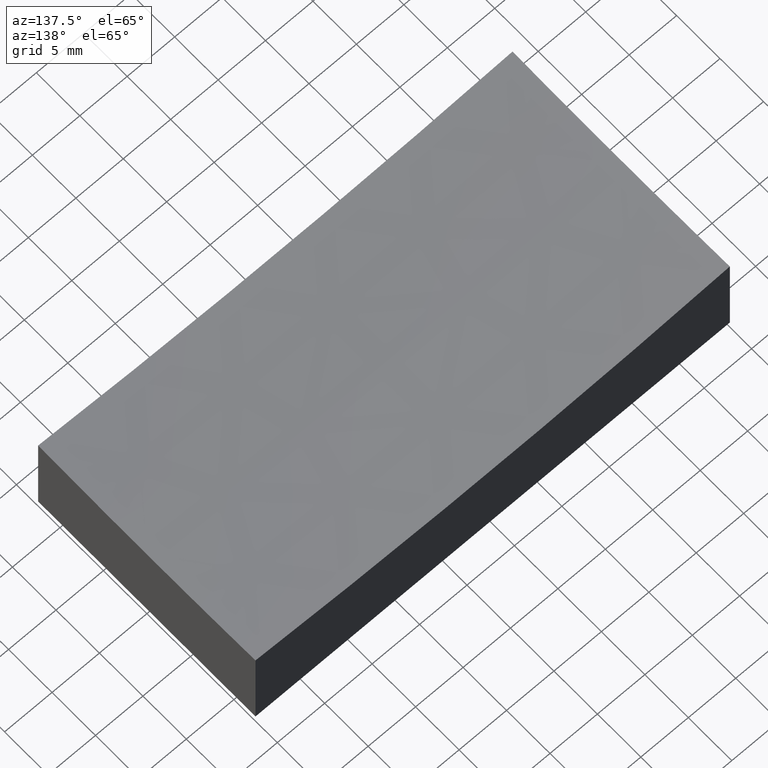
[diagram: clean part render]
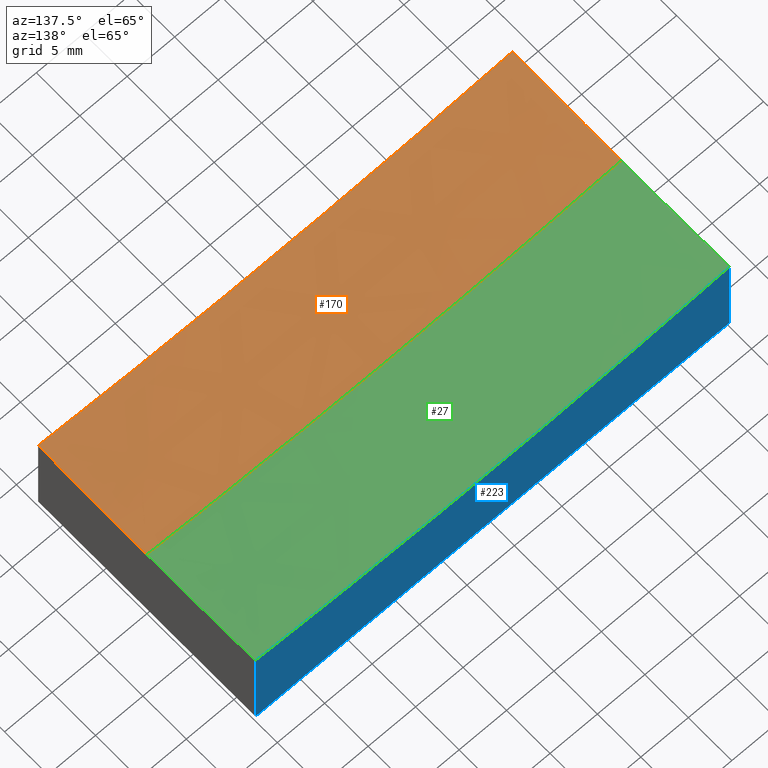
[diagram: same view with three faces highlighted in distinct colors, each labeled with its STEP entity id]
A machine part, auxiliary view with three faces highlighted in distinct colors.
Their STEP definitions:

[orange] entity #170 — the highlighted spherical surface has radius 300 mm.
#5 = CARTESIAN_POINT ( 'NONE',  ( 25.00000000000000000, -6.938893903907228378E-15, 309.0000000000000000 ) ) ;
#14 = FACE_OUTER_BOUND ( 'NONE', #175, .T. ) ;
#17 = DIRECTION ( 'NONE',  ( 8.881784197001250746E-15, 0.000000000000000000, 1.000000000000000000 ) ) ;
#20 = AXIS2_PLACEMENT_3D ( 'NONE', #58, #108, #55 ) ;
#26 = ORIENTED_EDGE ( 'NONE', *, *, #189, .F. ) ;
#36 = AXIS2_PLACEMENT_3D ( 'NONE', #110, #53, #148 ) ;
#44 = CIRCLE ( 'NONE', #181, 298.9565185775349505 ) ;
#47 = DIRECTION ( 'NONE',  ( -1.392622700503039140E-16, 1.000000000000000000, 0.000000000000000000 ) ) ;
#50 = VERTEX_POINT ( 'NONE', #240 ) ;
#52 = CARTESIAN_POINT ( 'NONE',  ( -25.00000000000000000, -3.061616997868383043E-15, 10.04348142246502817 ) ) ;
#53 = DIRECTION ( 'NONE',  ( 1.224646799147353207E-16, -1.000000000000000000, -1.592996844355151900E-35 ) ) ;
#55 = DIRECTION ( 'NONE',  ( 0.000000000000000000, 0.000000000000000000, 1.000000000000000000 ) ) ;
#58 = CARTESIAN_POINT ( 'NONE',  ( 0.000000000000000000, 0.000000000000000000, 309.0000000000000000 ) ) ;
#72 = EDGE_CURVE ( 'NONE', #139, #158, #44, .T. ) ;
#73 = CARTESIAN_POINT ( 'NONE',  ( 24.99999999999999645, -12.50000000000000000, 10.30492136628696720 ) ) ;
#74 = CARTESIAN_POINT ( 'NONE',  ( 25.00000000000000000, 0.000000000000000000, 10.04348142246502817 ) ) ;
#81 = EDGE_CURVE ( 'NONE', #97, #100, #172, .T. ) ;
#88 = CARTESIAN_POINT ( 'NONE',  ( 0.000000000000000000, 0.000000000000000000, 309.0000000000000000 ) ) ;
#97 = VERTEX_POINT ( 'NONE', #73 ) ;
#100 = VERTEX_POINT ( 'NONE', #74 ) ;
#108 = DIRECTION ( 'NONE',  ( 0.000000000000000000, 1.000000000000000000, -0.000000000000000000 ) ) ;
#109 = SPHERICAL_SURFACE ( 'NONE', #235, 300.0000000000000000 ) ;
#110 = CARTESIAN_POINT ( 'NONE',  ( 0.000000000000000000, 0.000000000000000000, 309.0000000000000000 ) ) ;
#111 = CIRCLE ( 'NONE', #20, 300.0000000000000000 ) ;
#116 = EDGE_CURVE ( 'NONE', #100, #50, #111, .T. ) ;
#120 = DIRECTION ( 'NONE',  ( 1.000000000000000000, -2.775557561562891351E-16, -0.000000000000000000 ) ) ;
#122 = ORIENTED_EDGE ( 'NONE', *, *, #72, .T. ) ;
#123 = AXIS2_PLACEMENT_3D ( 'NONE', #5, #120, #205 ) ;
#128 = DIRECTION ( 'NONE',  ( 0.000000000000000000, -1.000000000000000000, -0.000000000000000000 ) ) ;
#132 = DIRECTION ( 'NONE',  ( -0.000000000000000000, -1.000000000000000000, -0.000000000000000000 ) ) ;
#137 = ORIENTED_EDGE ( 'NONE', *, *, #81, .T. ) ;
#139 = VERTEX_POINT ( 'NONE', #52 ) ;
#140 = CIRCLE ( 'NONE', #36, 300.0000000000000000 ) ;
#144 = DIRECTION ( 'NONE',  ( -1.000000000000000000, -1.387778780781445676E-16, 0.000000000000000000 ) ) ;
#146 = AXIS2_PLACEMENT_3D ( 'NONE', #165, #132, #17 ) ;
#148 = DIRECTION ( 'NONE',  ( 1.000000000000000000, 1.224646799147353207E-16, 0.000000000000000000 ) ) ;
#158 = VERTEX_POINT ( 'NONE', #179 ) ;
#163 = DIRECTION ( 'NONE',  ( 1.000000000000000000, 0.000000000000000000, 0.000000000000000000 ) ) ;
#165 = CARTESIAN_POINT ( 'NONE',  ( 0.000000000000000000, -12.49999999999999645, 309.0000000000000000 ) ) ;
#170 = ADVANCED_FACE ( 'NONE', ( #14 ), #109, .F. ) ;
#172 = CIRCLE ( 'NONE', #123, 298.9565185775349505 ) ;
#175 = EDGE_LOOP ( 'NONE', ( #26, #122, #194, #137, #185 ) ) ;
#179 = CARTESIAN_POINT ( 'NONE',  ( -24.99999999999998934, -12.49999999999999645, 10.30492136628702227 ) ) ;
#181 = AXIS2_PLACEMENT_3D ( 'NONE', #200, #144, #47 ) ;
#185 = ORIENTED_EDGE ( 'NONE', *, *, #116, .T. ) ;
#189 = EDGE_CURVE ( 'NONE', #139, #50, #140, .T. ) ;
#194 = ORIENTED_EDGE ( 'NONE', *, *, #203, .T. ) ;
#200 = CARTESIAN_POINT ( 'NONE',  ( -25.00000000000000000, -3.469446951953614189E-15, 309.0000000000000000 ) ) ;
#203 = EDGE_CURVE ( 'NONE', #158, #97, #213, .T. ) ;
#205 = DIRECTION ( 'NONE',  ( -2.785245401006078279E-16, -1.000000000000000000, 0.000000000000000000 ) ) ;
#213 = CIRCLE ( 'NONE', #146, 299.7394702070449739 ) ;
#235 = AXIS2_PLACEMENT_3D ( 'NONE', #88, #128, #163 ) ;
#240 = CARTESIAN_POINT ( 'NONE',  ( 1.833067856807922641E-14, 0.000000000000000000, 9.000000000000007105 ) ) ;

[blue] entity #223 — the highlighted planar face has unit normal (0, -1, 0).
#2 = VECTOR ( 'NONE', #145, 1000.000000000000000 ) ;
#3 = AXIS2_PLACEMENT_3D ( 'NONE', #167, #114, #79 ) ;
#11 = CARTESIAN_POINT ( 'NONE',  ( -25.00000000000000000, 12.50000000000000000, 15.00000000000000000 ) ) ;
#21 = ORIENTED_EDGE ( 'NONE', *, *, #233, .F. ) ;
#25 = CARTESIAN_POINT ( 'NONE',  ( 25.00000000000000355, 12.50000000000000000, 10.30492136628702227 ) ) ;
#37 = LINE ( 'NONE', #245, #2 ) ;
#39 = FACE_OUTER_BOUND ( 'NONE', #214, .T. ) ;
#46 = AXIS2_PLACEMENT_3D ( 'NONE', #187, #208, #93 ) ;
#48 = VERTEX_POINT ( 'NONE', #160 ) ;
#57 = CARTESIAN_POINT ( 'NONE',  ( -25.00000000000000000, 12.50000000000000000, 0.000000000000000000 ) ) ;
#68 = ORIENTED_EDGE ( 'NONE', *, *, #106, .T. ) ;
#71 = VERTEX_POINT ( 'NONE', #25 ) ;
#79 = DIRECTION ( 'NONE',  ( 0.000000000000000000, 0.000000000000000000, -1.000000000000000000 ) ) ;
#93 = DIRECTION ( 'NONE',  ( 0.000000000000000000, -0.000000000000000000, -1.000000000000000000 ) ) ;
#104 = ORIENTED_EDGE ( 'NONE', *, *, #251, .T. ) ;
#106 = EDGE_CURVE ( 'NONE', #71, #48, #37, .T. ) ;
#114 = DIRECTION ( 'NONE',  ( -0.000000000000000000, 1.000000000000000000, -0.000000000000000000 ) ) ;
#135 = PLANE ( 'NONE',  #46 ) ;
#145 = DIRECTION ( 'NONE',  ( -0.000000000000000000, -0.000000000000000000, -1.000000000000000000 ) ) ;
#147 = LINE ( 'NONE', #11, #156 ) ;
#149 = LINE ( 'NONE', #249, #250 ) ;
#155 = EDGE_CURVE ( 'NONE', #161, #174, #147, .T. ) ;
#156 = VECTOR ( 'NONE', #246, 1000.000000000000000 ) ;
#160 = CARTESIAN_POINT ( 'NONE',  ( 25.00000000000000355, 12.50000000000000000, 0.000000000000000000 ) ) ;
#161 = VERTEX_POINT ( 'NONE', #226 ) ;
#162 = CIRCLE ( 'NONE', #3, 299.7394702070449171 ) ;
#167 = CARTESIAN_POINT ( 'NONE',  ( 0.000000000000000000, 12.50000000000000000, 309.0000000000000000 ) ) ;
#174 = VERTEX_POINT ( 'NONE', #57 ) ;
#187 = CARTESIAN_POINT ( 'NONE',  ( -25.00000000000000000, 12.50000000000000000, 15.00000000000000000 ) ) ;
#190 = ORIENTED_EDGE ( 'NONE', *, *, #155, .F. ) ;
#208 = DIRECTION ( 'NONE',  ( 0.000000000000000000, -1.000000000000000000, 0.000000000000000000 ) ) ;
#214 = EDGE_LOOP ( 'NONE', ( #21, #68, #104, #190 ) ) ;
#223 = ADVANCED_FACE ( 'NONE', ( #39 ), #135, .F. ) ;
#226 = CARTESIAN_POINT ( 'NONE',  ( -25.00000000000000000, 12.50000000000000000, 10.30492136628702227 ) ) ;
#229 = DIRECTION ( 'NONE',  ( -1.000000000000000000, -0.000000000000000000, -0.000000000000000000 ) ) ;
#233 = EDGE_CURVE ( 'NONE', #71, #161, #162, .T. ) ;
#245 = CARTESIAN_POINT ( 'NONE',  ( 25.00000000000000355, 12.50000000000000000, 15.00000000000000000 ) ) ;
#246 = DIRECTION ( 'NONE',  ( -0.000000000000000000, -0.000000000000000000, -1.000000000000000000 ) ) ;
#249 = CARTESIAN_POINT ( 'NONE',  ( -25.00000000000000000, 12.50000000000000000, 0.000000000000000000 ) ) ;
#250 = VECTOR ( 'NONE', #229, 1000.000000000000000 ) ;
#251 = EDGE_CURVE ( 'NONE', #48, #174, #149, .T. ) ;

[green] entity #27 — the highlighted spherical surface has radius 300 mm.
#3 = AXIS2_PLACEMENT_3D ( 'NONE', #167, #114, #79 ) ;
#6 = CARTESIAN_POINT ( 'NONE',  ( 0.000000000000000000, 0.000000000000000000, 309.0000000000000000 ) ) ;
#9 = DIRECTION ( 'NONE',  ( 0.000000000000000000, -1.000000000000000000, -0.000000000000000000 ) ) ;
#19 = CARTESIAN_POINT ( 'NONE',  ( -25.00000000000000000, -3.469446951953614189E-15, 309.0000000000000000 ) ) ;
#20 = AXIS2_PLACEMENT_3D ( 'NONE', #58, #108, #55 ) ;
#25 = CARTESIAN_POINT ( 'NONE',  ( 25.00000000000000355, 12.50000000000000000, 10.30492136628702227 ) ) ;
#27 = ADVANCED_FACE ( 'NONE', ( #237 ), #168, .F. ) ;
#36 = AXIS2_PLACEMENT_3D ( 'NONE', #110, #53, #148 ) ;
#49 = ORIENTED_EDGE ( 'NONE', *, *, #151, .T. ) ;
#50 = VERTEX_POINT ( 'NONE', #240 ) ;
#52 = CARTESIAN_POINT ( 'NONE',  ( -25.00000000000000000, -3.061616997868383043E-15, 10.04348142246502817 ) ) ;
#53 = DIRECTION ( 'NONE',  ( 1.224646799147353207E-16, -1.000000000000000000, -1.592996844355151900E-35 ) ) ;
#55 = DIRECTION ( 'NONE',  ( 0.000000000000000000, 0.000000000000000000, 1.000000000000000000 ) ) ;
#58 = CARTESIAN_POINT ( 'NONE',  ( 0.000000000000000000, 0.000000000000000000, 309.0000000000000000 ) ) ;
#62 = DIRECTION ( 'NONE',  ( -1.392622700503039140E-16, 1.000000000000000000, 0.000000000000000000 ) ) ;
#67 = ORIENTED_EDGE ( 'NONE', *, *, #243, .T. ) ;
#71 = VERTEX_POINT ( 'NONE', #25 ) ;
#74 = CARTESIAN_POINT ( 'NONE',  ( 25.00000000000000000, 0.000000000000000000, 10.04348142246502817 ) ) ;
#75 = CARTESIAN_POINT ( 'NONE',  ( 25.00000000000000000, -6.938893903907228378E-15, 309.0000000000000000 ) ) ;
#77 = CIRCLE ( 'NONE', #186, 298.9565185775349505 ) ;
#79 = DIRECTION ( 'NONE',  ( 0.000000000000000000, 0.000000000000000000, -1.000000000000000000 ) ) ;
#84 = ORIENTED_EDGE ( 'NONE', *, *, #233, .T. ) ;
#100 = VERTEX_POINT ( 'NONE', #74 ) ;
#108 = DIRECTION ( 'NONE',  ( 0.000000000000000000, 1.000000000000000000, -0.000000000000000000 ) ) ;
#110 = CARTESIAN_POINT ( 'NONE',  ( 0.000000000000000000, 0.000000000000000000, 309.0000000000000000 ) ) ;
#111 = CIRCLE ( 'NONE', #20, 300.0000000000000000 ) ;
#114 = DIRECTION ( 'NONE',  ( -0.000000000000000000, 1.000000000000000000, -0.000000000000000000 ) ) ;
#116 = EDGE_CURVE ( 'NONE', #100, #50, #111, .T. ) ;
#125 = CIRCLE ( 'NONE', #220, 298.9565185775349505 ) ;
#138 = DIRECTION ( 'NONE',  ( 1.000000000000000000, 0.000000000000000000, 0.000000000000000000 ) ) ;
#139 = VERTEX_POINT ( 'NONE', #52 ) ;
#140 = CIRCLE ( 'NONE', #36, 300.0000000000000000 ) ;
#148 = DIRECTION ( 'NONE',  ( 1.000000000000000000, 1.224646799147353207E-16, 0.000000000000000000 ) ) ;
#151 = EDGE_CURVE ( 'NONE', #100, #71, #77, .T. ) ;
#152 = DIRECTION ( 'NONE',  ( -1.000000000000000000, -1.387778780781445676E-16, 0.000000000000000000 ) ) ;
#154 = EDGE_LOOP ( 'NONE', ( #67, #218, #216, #49, #84 ) ) ;
#161 = VERTEX_POINT ( 'NONE', #226 ) ;
#162 = CIRCLE ( 'NONE', #3, 299.7394702070449171 ) ;
#167 = CARTESIAN_POINT ( 'NONE',  ( 0.000000000000000000, 12.50000000000000000, 309.0000000000000000 ) ) ;
#168 = SPHERICAL_SURFACE ( 'NONE', #192, 300.0000000000000000 ) ;
#182 = DIRECTION ( 'NONE',  ( -2.785245401006078279E-16, -1.000000000000000000, 0.000000000000000000 ) ) ;
#186 = AXIS2_PLACEMENT_3D ( 'NONE', #75, #224, #182 ) ;
#189 = EDGE_CURVE ( 'NONE', #139, #50, #140, .T. ) ;
#192 = AXIS2_PLACEMENT_3D ( 'NONE', #6, #9, #138 ) ;
#216 = ORIENTED_EDGE ( 'NONE', *, *, #116, .F. ) ;
#218 = ORIENTED_EDGE ( 'NONE', *, *, #189, .T. ) ;
#220 = AXIS2_PLACEMENT_3D ( 'NONE', #19, #152, #62 ) ;
#224 = DIRECTION ( 'NONE',  ( 1.000000000000000000, -2.775557561562891351E-16, -0.000000000000000000 ) ) ;
#226 = CARTESIAN_POINT ( 'NONE',  ( -25.00000000000000000, 12.50000000000000000, 10.30492136628702227 ) ) ;
#233 = EDGE_CURVE ( 'NONE', #71, #161, #162, .T. ) ;
#237 = FACE_OUTER_BOUND ( 'NONE', #154, .T. ) ;
#240 = CARTESIAN_POINT ( 'NONE',  ( 1.833067856807922641E-14, 0.000000000000000000, 9.000000000000007105 ) ) ;
#243 = EDGE_CURVE ( 'NONE', #161, #139, #125, .T. ) ;